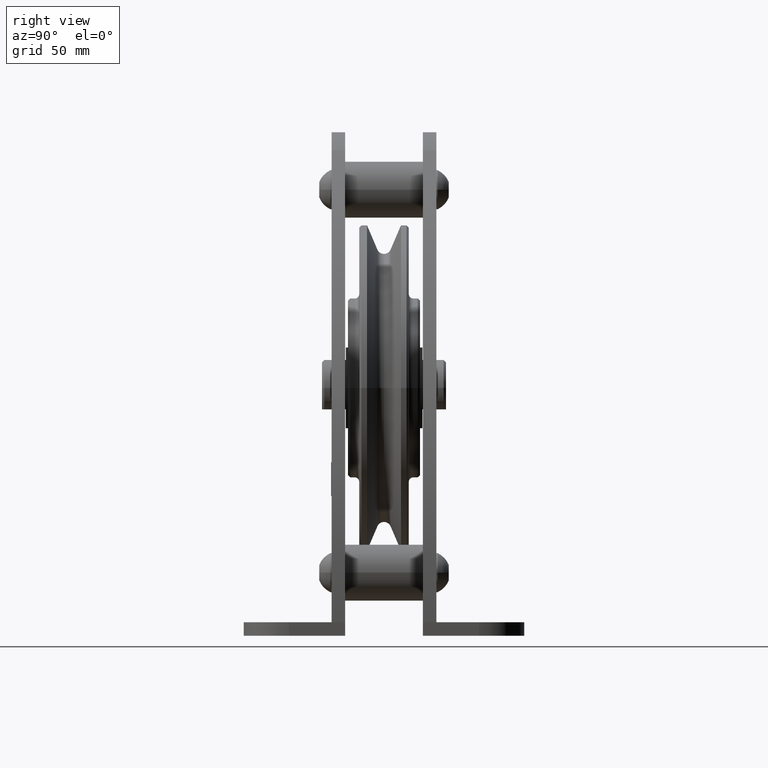
[diagram: clean part render]
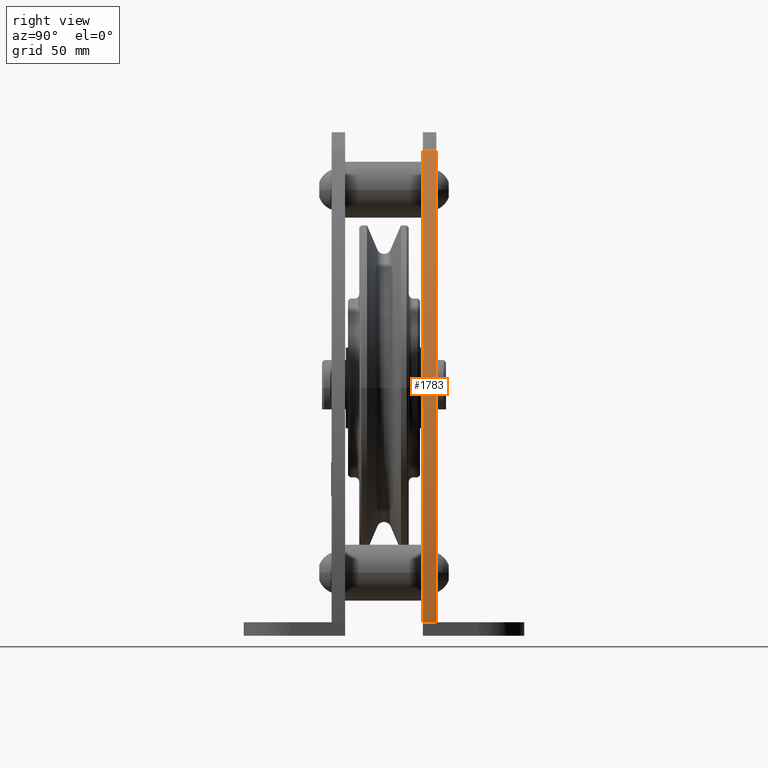
[diagram: same view with one face highlighted and labeled with its STEP entity id]
A machine part, right view. The second image highlights one B-rep face of the part: STEP entity #1783.
In plain terms, the highlighted cylindrical surface (partial cylindrical patch) has radius 310 mm, axis along (-0, 1, 0).
Its self-contained STEP definition (entity closure, byte-faithful):
#1783=ADVANCED_FACE('',(#3749),#3750,.T.);
#3749=FACE_OUTER_BOUND('',#5855,.T.);
#3750=CYLINDRICAL_SURFACE('',#5856,309.999999979699);
#5855=EDGE_LOOP('',(#11534,#11535,#11536,#11537));
#5856=AXIS2_PLACEMENT_3D('',#11538,#11539,#11540);
#11534=ORIENTED_EDGE('',*,*,#14669,.T.);
#11535=ORIENTED_EDGE('',*,*,#14691,.F.);
#11536=ORIENTED_EDGE('',*,*,#14692,.T.);
#11537=ORIENTED_EDGE('',*,*,#14688,.T.);
#11538=CARTESIAN_POINT('',(-209.999999979699,17.25,-103.9999999978));
#11539=DIRECTION('',(-0.0,1.0,0.0));
#11540=DIRECTION('',(0.736842105240575,0.0,0.676064872585936));
#14669=EDGE_CURVE('',#18204,#18209,#18211,.T.);
#14688=EDGE_CURVE('',#18239,#18204,#18240,.T.);
#14691=EDGE_CURVE('',#18243,#18209,#18244,.T.);
#14692=EDGE_CURVE('',#18243,#18239,#18245,.T.);
#18204=VERTEX_POINT('',#25943);
#18209=VERTEX_POINT('',#25949);
#18211=CIRCLE('',#25951,309.999999979699);
#18239=VERTEX_POINT('',#25988);
#18240=LINE('',#25989,#25990);
#18243=VERTEX_POINT('',#25994);
#18244=LINE('',#25995,#25996);
#18245=CIRCLE('',#25997,309.999999979699);
#25943=CARTESIAN_POINT('',(100.0,23.25,-103.999999999964));
#25949=CARTESIAN_POINT('',(18.421052630019,23.25,105.580110489983));
#25951=AXIS2_PLACEMENT_3D('',#29034,#29035,#29036);
#25988=CARTESIAN_POINT('',(100.0,17.25,-103.999999999964));
#25989=CARTESIAN_POINT('',(100.0,17.25,-103.999999999964));
#25990=VECTOR('',#29058,1.0);
#25994=CARTESIAN_POINT('',(18.421052630019,17.25,105.580110489983));
#25995=CARTESIAN_POINT('',(18.421052630019,17.25,105.580110489983));
#25996=VECTOR('',#29060,1.0);
#25997=AXIS2_PLACEMENT_3D('',#29061,#29062,#29063);
#29034=CARTESIAN_POINT('',(-209.999999979699,23.25,-103.9999999978));
#29035=DIRECTION('',(0.0,-1.0,0.0));
#29036=DIRECTION('',(0.736842105240575,0.0,0.676064872585936));
#29058=DIRECTION('',(0.0,1.0,0.0));
#29060=DIRECTION('',(0.0,1.0,0.0));
#29061=CARTESIAN_POINT('',(-209.999999979699,17.25,-103.9999999978));
#29062=DIRECTION('',(-0.0,1.0,0.0));
#29063=DIRECTION('',(0.736842105240575,0.0,0.676064872585936));